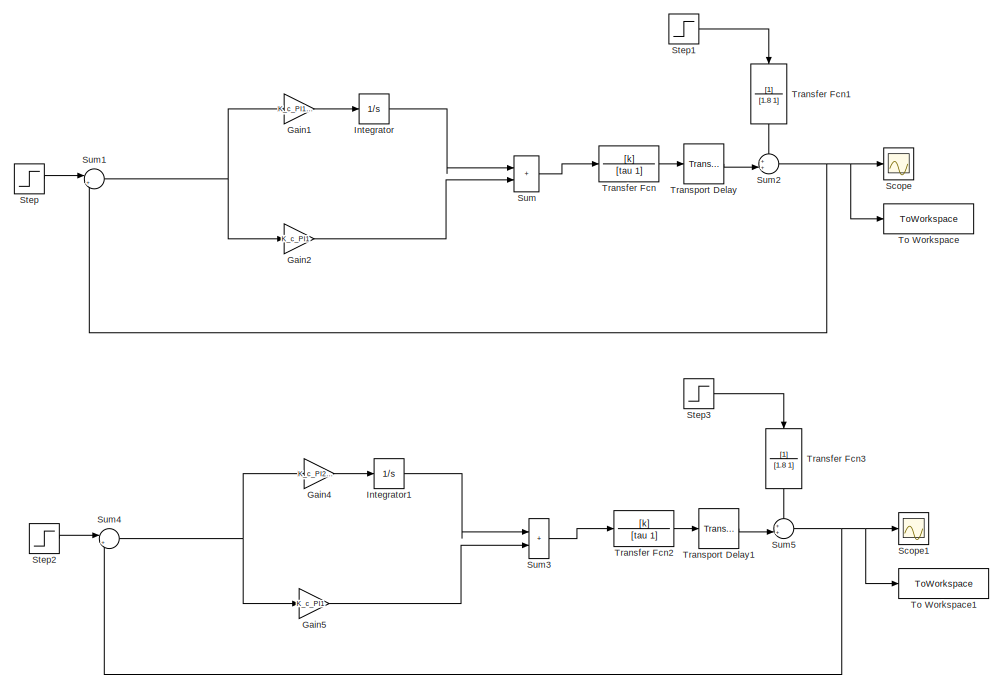
[diagram: root canvas - part 1/2, right side, full height]
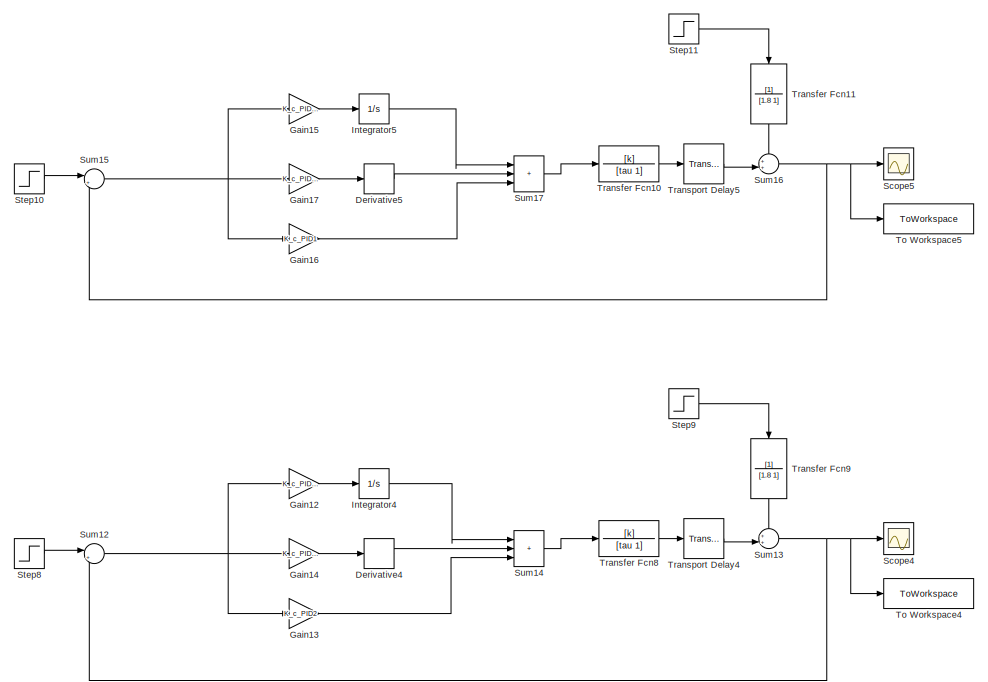
[diagram: root canvas - part 2/2, left side, full height]
MODEL slx_fbca5347a153
KIND model
CONFIG AbsTol = auto
CONFIG EnableMultiTasking = off
CONFIG FixedStep = auto
CONFIG MaxStep = 2e-3
CONFIG MinStep = auto
CONFIG RelTol = 1e-3
CONFIG SampleTimeConstraint = Unconstrained
CONFIG SolverName = VariableStepAuto
CONFIG StartTime = 0.0
CONFIG StopTime = 20.0
BLOCK [Derivative] Derivative4
BLOCK [Derivative] Derivative5
BLOCK [Gain] Gain1
  Gain = K_c_PI1/tau_i_PI1
BLOCK [Gain] Gain12
  Gain = K_c_PID2/tau_i_PID2
BLOCK [Gain] Gain13
  Gain = K_c_PID2
BLOCK [Gain] Gain14
  Gain = K_c_PID2*tau_d_PID2
BLOCK [Gain] Gain15
  Gain = K_c_PID1/tau_i_PID1
BLOCK [Gain] Gain16
  Gain = K_c_PID1
BLOCK [Gain] Gain17
  Gain = K_c_PID1*tau_d_PID1
BLOCK [Gain] Gain2
  Gain = K_c_PI1
BLOCK [Gain] Gain4
  Gain = K_c_PI2/tau_i_PI2
BLOCK [Gain] Gain5
  Gain = K_c_PI1
BLOCK [Integrator] Integrator
BLOCK [Integrator] Integrator1
BLOCK [Integrator] Integrator4
BLOCK [Integrator] Integrator5
BLOCK [Scope] Scope
  Floating = off
  NumInputPorts = 1
  ScopeSpecificationString = Simulink.scopes.TimeScopeBlockCfg('CurrentConfiguration', extmgr.ConfigurationSet(extmgr.Configuration('Core','General UI',true),extmgr.Configuration('Core','Source UI',true),extmgr.Configuration('Sources','WiredSimulink',true),extmgr.Configuration('Visuals','Time Domain',true,'SerializedDisplays',{struct('MinYLimReal','-0.16081','MaxYLimReal','1.44728','YLabelReal','','MinYLimMag','0.00000','MaxY...<+1324ch>
BLOCK [Scope] Scope1
  Floating = off
  NumInputPorts = 1
  ScopeSpecificationString = Simulink.scopes.TimeScopeBlockCfg('CurrentConfiguration', extmgr.ConfigurationSet(extmgr.Configuration('Core','General UI',true),extmgr.Configuration('Core','Source UI',true),extmgr.Configuration('Sources','WiredSimulink',true,'DataLoggingVariableName','ScopeData1'),extmgr.Configuration('Visuals','Time Domain',true,'SerializedDisplays',{struct('MinYLimReal','-0.16161','MaxYLimReal','1.4545','YLabe...<+1359ch>
BLOCK [Scope] Scope4
  Floating = off
  NumInputPorts = 1
  ScopeSpecificationString = Simulink.scopes.TimeScopeBlockCfg('CurrentConfiguration', extmgr.ConfigurationSet(extmgr.Configuration('Core','General UI',true),extmgr.Configuration('Core','Source UI',true),extmgr.Configuration('Sources','WiredSimulink',true,'DataLoggingVariableName','ScopeData4'),extmgr.Configuration('Visuals','Time Domain',true,'SerializedDisplays',{struct('MinYLimReal','-0.15411','MaxYLimReal','1.38696','YLab...<+1397ch>
BLOCK [Scope] Scope5
  Floating = off
  NumInputPorts = 1
  ScopeSpecificationString = Simulink.scopes.TimeScopeBlockCfg('CurrentConfiguration', extmgr.ConfigurationSet(extmgr.Configuration('Core','General UI',true),extmgr.Configuration('Core','Source UI',true),extmgr.Configuration('Sources','WiredSimulink',true,'DataLoggingVariableName','ScopeData5'),extmgr.Configuration('Visuals','Time Domain',true,'SerializedDisplays',{struct('MinYLimReal','-0.14854','MaxYLimReal','1.33682','YLab...<+1364ch>
BLOCK [Step] Step
  SampleTime = 0
  Time = 0
BLOCK [Step] Step1
  After = 0
  SampleTime = 0
  Time = 12
BLOCK [Step] Step10
  SampleTime = 0
  Time = 0
BLOCK [Step] Step11
  After = 0
  SampleTime = 0
  Time = 12
BLOCK [Step] Step2
  SampleTime = 0
  Time = 0
BLOCK [Step] Step3
  After = 0
  SampleTime = 0
  Time = 12
BLOCK [Step] Step8
  SampleTime = 0
  Time = 0
BLOCK [Step] Step9
  After = 0
  SampleTime = 0
  Time = 12
BLOCK [Sum] Sum
  IconShape = rectangular
  Inputs = |++
BLOCK [Sum] Sum1
  Inputs = |+-
BLOCK [Sum] Sum12
  Inputs = |+-
BLOCK [Sum] Sum13
  Inputs = ++|
BLOCK [Sum] Sum14
  IconShape = rectangular
  Inputs = |+++
BLOCK [Sum] Sum15
  Inputs = |+-
BLOCK [Sum] Sum16
  Inputs = ++|
BLOCK [Sum] Sum17
  IconShape = rectangular
  Inputs = |+++
BLOCK [Sum] Sum2
  Inputs = ++|
BLOCK [Sum] Sum3
  IconShape = rectangular
  Inputs = |++
BLOCK [Sum] Sum4
  Inputs = |+-
BLOCK [Sum] Sum5
  Inputs = ++|
BLOCK [ToWorkspace] To Workspace
  FixptAsFi = on
  MaxDataPoints = inf
  SampleTime = -1
  SaveFormat = Timeseries
  VariableName = simoutPI1
BLOCK [ToWorkspace] To Workspace1
  FixptAsFi = on
  MaxDataPoints = inf
  SampleTime = -1
  SaveFormat = Timeseries
  VariableName = simoutPI2
BLOCK [ToWorkspace] To Workspace4
  FixptAsFi = on
  MaxDataPoints = inf
  SampleTime = -1
  SaveFormat = Timeseries
  VariableName = simoutPID2
BLOCK [ToWorkspace] To Workspace5
  FixptAsFi = on
  MaxDataPoints = inf
  SampleTime = -1
  SaveFormat = Timeseries
  VariableName = simoutPID1
BLOCK [TransferFcn] Transfer Fcn
  Denominator = [tau 1]
  Numerator = [k]
BLOCK [TransferFcn] Transfer Fcn1
  Denominator = [1.8 1]
  NameLocation = left
BLOCK [TransferFcn] Transfer Fcn10
  Denominator = [tau 1]
  Numerator = [k]
BLOCK [TransferFcn] Transfer Fcn11
  Denominator = [1.8 1]
  NameLocation = left
BLOCK [TransferFcn] Transfer Fcn2
  Denominator = [tau 1]
  Numerator = [k]
BLOCK [TransferFcn] Transfer Fcn3
  Denominator = [1.8 1]
  NameLocation = left
BLOCK [TransferFcn] Transfer Fcn8
  Denominator = [tau 1]
  Numerator = [k]
BLOCK [TransferFcn] Transfer Fcn9
  Denominator = [1.8 1]
  NameLocation = left
BLOCK [TransportDelay] Transport Delay
  DelayTime = theta
BLOCK [TransportDelay] Transport Delay1
  DelayTime = theta
BLOCK [TransportDelay] Transport Delay4
  DelayTime = theta
BLOCK [TransportDelay] Transport Delay5
  DelayTime = theta
LINE Derivative4:1 -> Sum14:2
LINE Derivative5:1 -> Sum17:2
LINE Gain12:1 -> Integrator4:1
LINE Gain13:1 -> Sum14:3
LINE Gain14:1 -> Derivative4:1
LINE Gain15:1 -> Integrator5:1
LINE Gain16:1 -> Sum17:3
LINE Gain17:1 -> Derivative5:1
LINE Gain1:1 -> Integrator:1
LINE Gain2:1 -> Sum:2
LINE Gain4:1 -> Integrator1:1
LINE Gain5:1 -> Sum3:2
LINE Integrator1:1 -> Sum3:1
LINE Integrator4:1 -> Sum14:1
LINE Integrator5:1 -> Sum17:1
LINE Integrator:1 -> Sum:1
LINE Step10:1 -> Sum15:1
LINE Step11:1 -> Transfer Fcn11:1
LINE Step1:1 -> Transfer Fcn1:1
LINE Step2:1 -> Sum4:1
LINE Step3:1 -> Transfer Fcn3:1
LINE Step8:1 -> Sum12:1
LINE Step9:1 -> Transfer Fcn9:1
LINE Step:1 -> Sum1:1
NET Sum12:1 -> Gain12:1, Gain13:1, Gain14:1
NET Sum13:1 -> Scope4:1, Sum12:2, To Workspace4:1
LINE Sum14:1 -> Transfer Fcn8:1
NET Sum15:1 -> Gain15:1, Gain16:1, Gain17:1
NET Sum16:1 -> Scope5:1, Sum15:2, To Workspace5:1
LINE Sum17:1 -> Transfer Fcn10:1
NET Sum1:1 -> Gain1:1, Gain2:1
NET Sum2:1 -> Scope:1, Sum1:2, To Workspace:1
LINE Sum3:1 -> Transfer Fcn2:1
NET Sum4:1 -> Gain4:1, Gain5:1
NET Sum5:1 -> Scope1:1, Sum4:2, To Workspace1:1
LINE Sum:1 -> Transfer Fcn:1
LINE Transfer Fcn10:1 -> Transport Delay5:1
LINE Transfer Fcn11:1 -> Sum16:1
LINE Transfer Fcn1:1 -> Sum2:1
LINE Transfer Fcn2:1 -> Transport Delay1:1
LINE Transfer Fcn3:1 -> Sum5:1
LINE Transfer Fcn8:1 -> Transport Delay4:1
LINE Transfer Fcn9:1 -> Sum13:1
LINE Transfer Fcn:1 -> Transport Delay:1
LINE Transport Delay1:1 -> Sum5:2
LINE Transport Delay4:1 -> Sum13:2
LINE Transport Delay5:1 -> Sum16:2
LINE Transport Delay:1 -> Sum2:2
note: NET lines group one-source signal fan-out (src -> all destinations, sorted); 1:1 wires keep LINE
